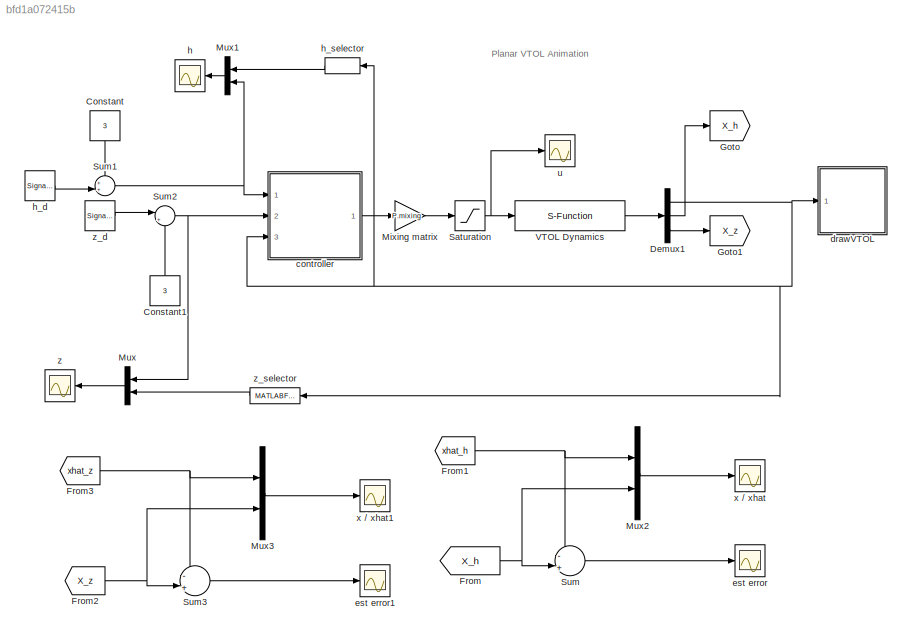
MODEL slx_bfd1a072415b
KIND model
CONFIG AbsTol = auto
CONFIG FixedStep = auto
CONFIG InitFcn = param
CONFIG MaxStep = auto
CONFIG MinStep = auto
CONFIG RelTol = 1e-3
CONFIG SampleTimeConstraint = Unconstrained
CONFIG Solver = ode45
CONFIG SolverMode = Auto
CONFIG SolverName = ode45
CONFIG StartTime = 0.0
CONFIG StopTime = 200
BLOCK [Constant] Constant
  Value = 3
BLOCK [Constant] Constant1
  Value = 3
BLOCK [Demux] Demux1
  DisplayOption = bar
  Outputs = [3 2 4]
  Ports = [1, 3]
BLOCK [From] From
  GotoTag = X_h
  TagVisibility = global
BLOCK [From] From1
  GotoTag = xhat_h
  TagVisibility = global
BLOCK [From] From2
  GotoTag = X_z
  TagVisibility = global
BLOCK [From] From3
  GotoTag = xhat_z
  TagVisibility = global
BLOCK [Goto] Goto
  GotoTag = X_h
  TagVisibility = global
BLOCK [Goto] Goto1
  GotoTag = X_z
  TagVisibility = global
BLOCK [Gain] Mixing matrix
  Gain = P.mixing
  Multiplication = Matrix(K*u)
  OutDataTypeStr = Inherit: Inherit via internal rule
  ParamDataTypeStr = Inherit: Inherit via internal rule
  SaturateOnIntegerOverflow = off
BLOCK [Mux] Mux
  DisplayOption = bar
  Inputs = 2
  Ports = [2, 1]
BLOCK [Mux] Mux1
  DisplayOption = bar
  Inputs = 2
  Ports = [2, 1]
BLOCK [Mux] Mux2
  DisplayOption = bar
  Inputs = 2
  Ports = [2, 1]
BLOCK [Mux] Mux3
  DisplayOption = bar
  Inputs = 2
  Ports = [2, 1]
BLOCK [Saturate] Saturation
  InputPortMap = u0
  LowerLimit = 0
  Ports = [1, 1]
  UpperLimit = P.fmax
BLOCK [Sum] Sum
  IconShape = round
  InputSameDT = off
  Inputs = -|+||
  OutDataTypeStr = Inherit: Inherit via internal rule
  Ports = [2, 1]
  SaturateOnIntegerOverflow = off
BLOCK [Sum] Sum1
  IconShape = round
  InputSameDT = off
  Inputs = ++|
  OutDataTypeStr = Inherit: Inherit via internal rule
  Ports = [2, 1]
  SaturateOnIntegerOverflow = off
BLOCK [Sum] Sum2
  IconShape = round
  InputSameDT = off
  Inputs = |++
  OutDataTypeStr = Inherit: Inherit via internal rule
  Ports = [2, 1]
  SaturateOnIntegerOverflow = off
BLOCK [Sum] Sum3
  IconShape = round
  InputSameDT = off
  Inputs = -|+||
  OutDataTypeStr = Inherit: Inherit via internal rule
  Ports = [2, 1]
  SaturateOnIntegerOverflow = off
BLOCK [S-Function] VTOL Dynamics
  FunctionName = VTOL_dynamics
  Parameters = AP
  Ports = [1, 1]
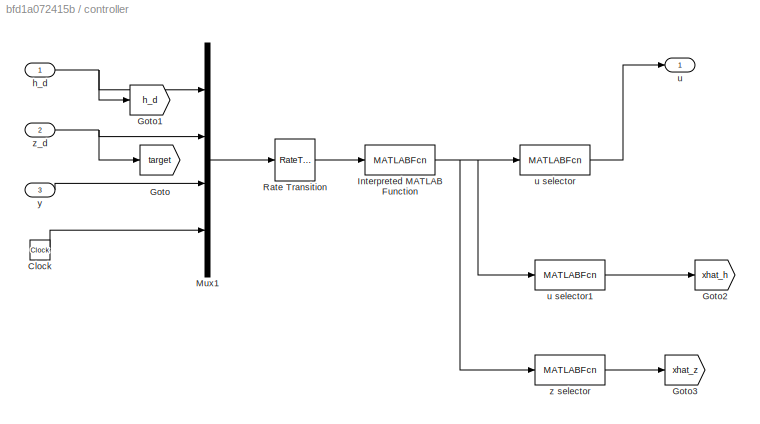
BLOCK [SubSystem] controller
  Ports = [3, 1]
  RequestExecContextInheritance = off
BLOCK [Clock] controller/Clock
BLOCK [Goto] controller/Goto
  GotoTag = target
  TagVisibility = global
BLOCK [Goto] controller/Goto1
  GotoTag = h_d
  TagVisibility = global
BLOCK [Goto] controller/Goto2
  GotoTag = xhat_h
  TagVisibility = global
BLOCK [Goto] controller/Goto3
  GotoTag = xhat_z
  TagVisibility = global
BLOCK [MATLABFcn] controller/Interpreted MATLAB Function
  MATLABFcn = Planar_VTOL_SSctrl(u,P)
  OutputDimensions = 8
  Ports = [1, 1]
BLOCK [Mux] controller/Mux1
  DisplayOption = bar
  Ports = [4, 1]
BLOCK [RateTransition] controller/Rate Transition
  OutPortSampleTime = P.Ts
BLOCK [Inport] controller/h_d
  IconDisplay = Port number
BLOCK [Outport] controller/u
  IconDisplay = Port number
BLOCK [MATLABFcn] controller/u selector
  MATLABFcn = selector_u
  OutputDimensions = 2
  Ports = [1, 1]
BLOCK [MATLABFcn] controller/u selector1
  MATLABFcn = selector_xhat
  OutputDimensions = 1
  Ports = [1, 1]
BLOCK [Inport] controller/y
  IconDisplay = Port number
  Port = 3
BLOCK [MATLABFcn] controller/z selector
  MATLABFcn = selector_xhat_z
  OutputDimensions = 1
  Ports = [1, 1]
BLOCK [Inport] controller/z_d
  IconDisplay = Port number
  Port = 2
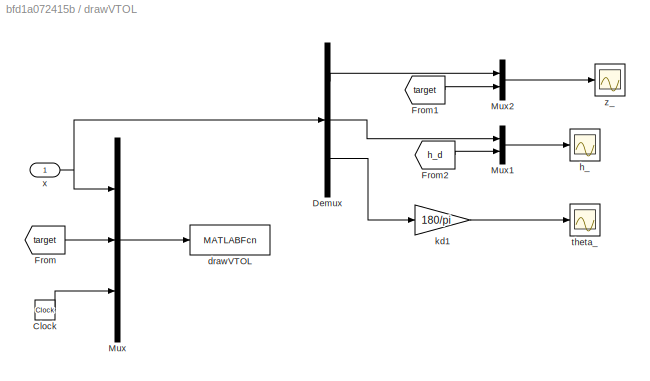
BLOCK [SubSystem] drawVTOL
  Ports = [1]
  RequestExecContextInheritance = off
BLOCK [Clock] drawVTOL/Clock
BLOCK [Demux] drawVTOL/Demux
  DisplayOption = bar
  Outputs = 3
  Ports = [1, 3]
BLOCK [From] drawVTOL/From
  GotoTag = target
  TagVisibility = global
BLOCK [From] drawVTOL/From1
  GotoTag = target
  TagVisibility = global
BLOCK [From] drawVTOL/From2
  GotoTag = h_d
  TagVisibility = global
BLOCK [Mux] drawVTOL/Mux
  DisplayOption = bar
  Inputs = 3
  Ports = [3, 1]
BLOCK [Mux] drawVTOL/Mux1
  DisplayOption = bar
  Inputs = 2
  Ports = [2, 1]
BLOCK [Mux] drawVTOL/Mux2
  DisplayOption = bar
  Inputs = 2
  Ports = [2, 1]
BLOCK [MATLABFcn] drawVTOL/drawVTOL
  MATLABFcn = drawVTOL(u)
  OutputDimensions = 0
  Ports = [1]
  SampleTime = 0.1
BLOCK [Scope] drawVTOL/h_
  DataFormat = StructureWithTime
  Floating = off
  LimitDataPoints = off
  NumInputPorts = 1
  Ports = [1]
  SampleTime = 0
  SaveName = ScopeData3
  TimeRange = 200
  YMax = 6
  YMin = 0
BLOCK [Gain] drawVTOL/kd1
  Gain = 180/pi
  OutDataTypeStr = Inherit: Inherit via internal rule
  ParamDataTypeStr = Inherit: Inherit via internal rule
  SaturateOnIntegerOverflow = off
BLOCK [Scope] drawVTOL/theta_
  DataFormat = StructureWithTime
  Floating = off
  NumInputPorts = 1
  Ports = [1]
  SampleTime = 0
  SaveName = ScopeData5
  TimeRange = 200
  YMax = 60
  YMin = -60
BLOCK [Inport] drawVTOL/x
  IconDisplay = Port number
BLOCK [Scope] drawVTOL/z_
  DataFormat = StructureWithTime
  Floating = off
  NumInputPorts = 1
  Ports = [1]
  SampleTime = 0
  SaveName = ScopeData4
  TimeRange = 200
  YMax = 6
  YMin = 0
BLOCK [Scope] est error
  DataFormat = StructureWithTime
  Floating = off
  NumInputPorts = 1
  Ports = [1]
  SampleTime = 0
  SaveName = ScopeData6
  TimeRange = 200
  YMax = 0.3
  YMin = -0.5
BLOCK [Scope] est error1
  DataFormat = StructureWithTime
  Floating = off
  NumInputPorts = 1
  Ports = [1]
  SampleTime = 0
  SaveName = ScopeData8
  TimeRange = 200
  YMax = 0.3
  YMin = -0.5
BLOCK [Scope] h
  Floating = off
  NumInputPorts = 1
  Ports = [1]
  SaveName = ScopeData1
  YMax = 65
  YMin = 0
BLOCK [SignalGenerator] h_d
  Amplitude = 2.5
  Frequency = .02
  Ports = [0, 1]
  WaveForm = square
BLOCK [MATLABFcn] h_selector
  MATLABFcn = h_selector
  OutputDimensions = 1
  Ports = [1, 1]
BLOCK [Scope] u
  Floating = off
  NumInputPorts = 1
  Ports = [1]
  SaveName = ScopeData2
  TimeRange = 200
  YMax = 10
  YMin = 6
BLOCK [Scope] x // xhat
  DataFormat = StructureWithTime
  Floating = off
  NumInputPorts = 1
  Ports = [1]
  SampleTime = 0
  SaveName = ScopeData7
  YMax = 0.5
  YMin = -0.2
BLOCK [Scope] x // xhat1
  DataFormat = StructureWithTime
  Floating = off
  NumInputPorts = 1
  Ports = [1]
  SampleTime = 0
  SaveName = ScopeData9
  YMax = 0.5
  YMin = -0.2
BLOCK [Scope] z
  Floating = off
  NumInputPorts = 1
  Ports = [1]
  YMax = 5.75
  YMin = 0
BLOCK [SignalGenerator] z_d
  Amplitude = 2.5
  Frequency = .008
  Ports = [0, 1]
  WaveForm = square
BLOCK [MATLABFcn] z_selector
  MATLABFcn = selector
  OutputDimensions = 1
  Ports = [1, 1]
ANNOTATION (root): Planar VTOL Animation
LINE Constant1:1 -> Sum2:2
LINE Constant:1 -> Sum1:1
NET Demux1:1 -> controller:3, drawVTOL:1, h_selector:1, z_selector:1
LINE Demux1:2 -> Goto:1
LINE Demux1:3 -> Goto1:1
NET From1:1 -> Mux2:1, Sum:1
NET From2:1 -> Mux3:2, Sum3:2
NET From3:1 -> Mux3:1, Sum3:1
NET From:1 -> Mux2:2, Sum:2
LINE Mixing matrix:1 -> Saturation:1
LINE Mux1:1 -> h:1
LINE Mux2:1 -> x // xhat:1
LINE Mux3:1 -> x // xhat1:1
LINE Mux:1 -> z:1
NET Saturation:1 -> VTOL Dynamics:1, u:1
NET Sum1:1 -> Mux1:2, controller:1
NET Sum2:1 -> Mux:1, controller:2
LINE Sum3:1 -> est error1:1
LINE Sum:1 -> est error:1
LINE VTOL Dynamics:1 -> Demux1:1
LINE controller/Clock:1 -> controller/Mux1:4
NET controller/Interpreted MATLAB Function:1 -> controller/u selector1:1, controller/u selector:1, controller/z selector:1
LINE controller/Mux1:1 -> controller/Rate Transition:1
LINE controller/Rate Transition:1 -> controller/Interpreted MATLAB Function:1
NET controller/h_d:1 -> controller/Goto1:1, controller/Mux1:1
LINE controller/u selector1:1 -> controller/Goto2:1
LINE controller/u selector:1 -> controller/u:1
LINE controller/y:1 -> controller/Mux1:3
LINE controller/z selector:1 -> controller/Goto3:1
NET controller/z_d:1 -> controller/Goto:1, controller/Mux1:2
LINE controller:1 -> Mixing matrix:1
LINE drawVTOL/Clock:1 -> drawVTOL/Mux:3
LINE drawVTOL/Demux:1 -> drawVTOL/Mux2:1
LINE drawVTOL/Demux:2 -> drawVTOL/Mux1:1
LINE drawVTOL/Demux:3 -> drawVTOL/kd1:1
LINE drawVTOL/From1:1 -> drawVTOL/Mux2:2
LINE drawVTOL/From2:1 -> drawVTOL/Mux1:2
LINE drawVTOL/From:1 -> drawVTOL/Mux:2
LINE drawVTOL/Mux1:1 -> drawVTOL/h_:1
LINE drawVTOL/Mux2:1 -> drawVTOL/z_:1
LINE drawVTOL/Mux:1 -> drawVTOL/drawVTOL:1
LINE drawVTOL/kd1:1 -> drawVTOL/theta_:1
NET drawVTOL/x:1 -> drawVTOL/Demux:1, drawVTOL/Mux:1
LINE h_d:1 -> Sum1:2
LINE h_selector:1 -> Mux1:1
LINE z_d:1 -> Sum2:1
LINE z_selector:1 -> Mux:2
note: NET lines group one-source signal fan-out (src -> all destinations, sorted); 1:1 wires keep LINE
